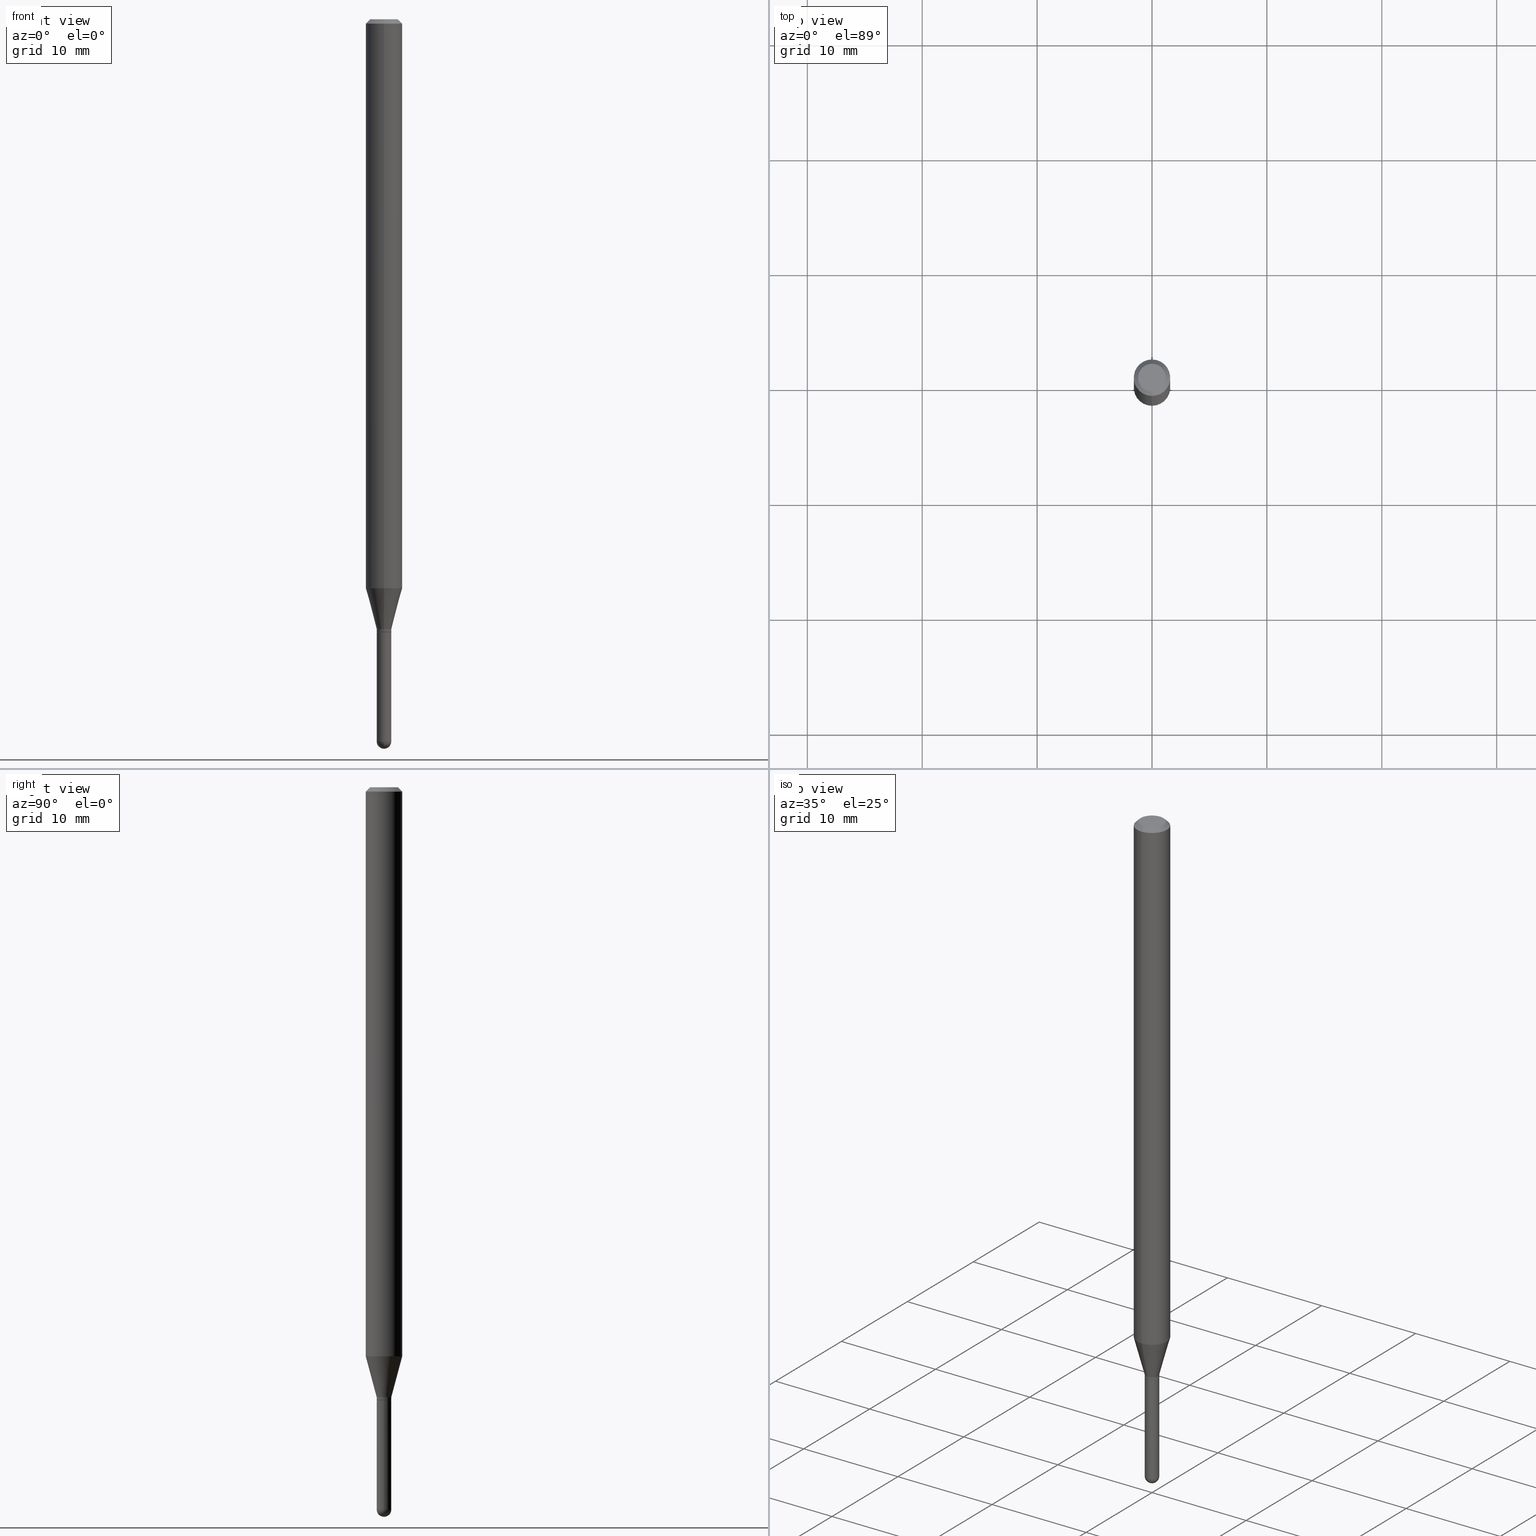
[diagram: canonical four-view strip — front | top / right | iso, engineering-drawing reading convention]
A machine part, canonical four-view strip (front | top / right | iso — engineering-drawing reading convention). The complete STEP part file that produces these views, byte-faithful:
ISO-10303-21;
HEADER;
FILE_DESCRIPTION (( 'STEP AP203' ),
    '1' );
FILE_NAME ('02757.STEP',
    '2024-03-07T21:16:15',
    ( '' ),
    ( '' ),
    'SwSTEP 2.0',
    'SolidWorks 2023',
    '' );
FILE_SCHEMA (( 'CONFIG_CONTROL_DESIGN' ));
ENDSEC;

DATA;
#1 = ORIENTED_EDGE ( 'NONE', *, *, #306, .F. ) ;
#2 = CC_DESIGN_PERSON_AND_ORGANIZATION_ASSIGNMENT ( #509, #86, ( #443 ) ) ;
#3 = CARTESIAN_POINT ( 'NONE',  ( 4.440892098501099478E-16, 0.06249999999999315131, -1.950048094716166691 ) ) ;
#4 = CARTESIAN_POINT ( 'NONE',  ( 5.135449444251921706E-29, -7.332161003356646763E-15, -2.100000000000000089 ) ) ;
#5 = DIRECTION ( 'NONE',  ( 2.445452116310438787E-29, -3.491505239693641409E-15, -1.000000000000000000 ) ) ;
#6 = APPLICATION_PROTOCOL_DEFINITION ( 'international standard', 'config_control_design', 1994, #57 ) ;
#7 = ORIENTED_EDGE ( 'NONE', *, *, #337, .F. ) ;
#8 = CONICAL_SURFACE ( 'NONE', #112, 0.02450000000000000441, 0.7853981633980202659 ) ;
#9 = CIRCLE ( 'NONE', #462, 0.02500000000000000139 ) ;
#10 = VECTOR ( 'NONE', #75, 39.37007874015748854 ) ;
#11 = CARTESIAN_POINT ( 'NONE',  ( 6.050397379585265558E-29, -8.644477930634654356E-15, -2.475000000000000089 ) ) ;
#12 = EDGE_CURVE ( 'NONE', #359, #162, #119, .T. ) ;
#13 = VECTOR ( 'NONE', #320, 39.37007874015748143 ) ;
#14 = CIRCLE ( 'NONE', #302, 0.02450000000000000441 ) ;
#15 = CARTESIAN_POINT ( 'NONE',  ( 5.110994923088818021E-29, -7.297245950959710763E-15, -2.090000000000000302 ) ) ;
#16 = DIRECTION ( 'NONE',  ( 1.000000000000000000, -6.982962677686254878E-15, 0.000000000000000000 ) ) ;
#17 = CARTESIAN_POINT ( 'NONE',  ( -4.287811248607203282E-16, -0.06250000000000005551, -0.01500000000000011047 ) ) ;
#18 = ORIENTED_EDGE ( 'NONE', *, *, #405, .T. ) ;
#19 = EDGE_CURVE ( 'NONE', #162, #298, #196, .T. ) ;
#20 = LINE ( 'NONE', #333, #235 ) ;
#21 = CIRCLE ( 'NONE', #84, 0.02499999999999966485 ) ;
#22 = DIRECTION ( 'NONE',  ( -6.982962677686265922E-15, -1.000000000000000000, 3.491505239693641409E-15 ) ) ;
#23 = DIRECTION ( 'NONE',  ( -2.445468806185136597E-29, 3.491481338843145583E-15, 1.000000000000000000 ) ) ;
#24 = DIRECTION ( 'NONE',  ( 1.000000000000000000, -6.982962677686267499E-15, 4.876176775795936353E-29 ) ) ;
#25 = VERTEX_POINT ( 'NONE', #430 ) ;
#26 = DIRECTION ( 'NONE',  ( 1.000000000000000000, -6.982962677686253300E-15, 0.000000000000000000 ) ) ;
#27 = EDGE_LOOP ( 'NONE', ( #1, #61, #124, #417 ) ) ;
#28 = CARTESIAN_POINT ( 'NONE',  ( 4.364351673553919652E-16, 0.06249999999999995143, -0.01500000000000054588 ) ) ;
#29 = ORIENTED_EDGE ( 'NONE', *, *, #74, .T. ) ;
#30 = AXIS2_PLACEMENT_3D ( 'NONE', #409, #94, #53 ) ;
#31 = VECTOR ( 'NONE', #460, 39.37007874015748143 ) ;
#32 = COORDINATED_UNIVERSAL_TIME_OFFSET ( 5, 0, .BEHIND. ) ;
#33 = PRODUCT ( '02757', '02757', '', ( #237 ) ) ;
#34 = FACE_OUTER_BOUND ( 'NONE', #461, .T. ) ;
#35 = PLANE ( 'NONE',  #399 ) ;
#36 = CARTESIAN_POINT ( 'NONE',  ( 3.668178174465738773E-31, -5.237257859540576252E-17, -0.01500000000000032904 ) ) ;
#37 = EDGE_CURVE ( 'NONE', #192, #248, #386, .T. ) ;
#38 = CARTESIAN_POINT ( 'NONE',  ( 5.135449444251921706E-29, -7.332161003356646763E-15, -2.099999999999999645 ) ) ;
#39 = EDGE_LOOP ( 'NONE', ( #474, #381, #374, #229 ) ) ;
#40 = ORIENTED_EDGE ( 'NONE', *, *, #490, .F. ) ;
#41 = CONICAL_SURFACE ( 'NONE', #285, 0.02499999999999965791, 0.2617993877991502960 ) ;
#42 = DIRECTION ( 'NONE',  ( 6.982962677686265922E-15, 1.000000000000000000, -3.491505239693641015E-15 ) ) ;
#43 = DIRECTION ( 'NONE',  ( -6.982962677686266711E-15, -1.000000000000000000, 3.491505239693641409E-15 ) ) ;
#44 = ORIENTED_EDGE ( 'NONE', *, *, #315, .F. ) ;
#45 = CARTESIAN_POINT ( 'NONE',  ( -1.776356839399633526E-16, -0.02500000000000847378, -2.475000000000000089 ) ) ;
#46 = LINE ( 'NONE', #485, #408 ) ;
#47 = PERSON_AND_ORGANIZATION ( #91, #128 ) ;
#48 = AXIS2_PLACEMENT_3D ( 'NONE', #338, #500, #297 ) ;
#49 = APPROVAL_PERSON_ORGANIZATION ( #428, #350, #145 ) ;
#50 = CONICAL_SURFACE ( 'NONE', #311, 0.06250000000000000000, 0.7853981633974483900 ) ;
#51 = CARTESIAN_POINT ( 'NONE',  ( 5.110994923088818021E-29, -7.297245950959710763E-15, -2.090000000000000302 ) ) ;
#52 = CARTESIAN_POINT ( 'NONE',  ( 5.135484492988787526E-29, -7.332110811570605290E-15, -2.100000000000000089 ) ) ;
#53 = DIRECTION ( 'NONE',  ( -6.982962677686266711E-15, -1.000000000000000000, 3.491505239693641409E-15 ) ) ;
#54 = ADVANCED_FACE ( 'NONE', ( #316 ), #35, .F. ) ;
#55 = AXIS2_PLACEMENT_3D ( 'NONE', #176, #92, #325 ) ;
#56 = ORIENTED_EDGE ( 'NONE', *, *, #215, .F. ) ;
#57 = APPLICATION_CONTEXT ( 'configuration controlled 3d designs of mechanical parts and assemblies' ) ;
#58 = CIRCLE ( 'NONE', #345, 0.02499999999999965791 ) ;
#59 = LINE ( 'NONE', #328, #168 ) ;
#60 = DIRECTION ( 'NONE',  ( -6.982962677686265922E-15, -1.000000000000000000, 0.000000000000000000 ) ) ;
#61 = ORIENTED_EDGE ( 'NONE', *, *, #155, .F. ) ;
#62 = ADVANCED_FACE ( 'NONE', ( #421 ), #50, .T. ) ;
#63 = DIRECTION ( 'NONE',  ( -1.807323732225330534E-15, -0.2588190451025182415, 0.9659258262890689783 ) ) ;
#64 = DIRECTION ( 'NONE',  ( -6.982962677686265922E-15, -1.000000000000000000, 0.000000000000000000 ) ) ;
#65 = EDGE_LOOP ( 'NONE', ( #410, #18, #370, #56 ) ) ;
#66 = CARTESIAN_POINT ( 'NONE',  ( 5.134226718193766409E-29, -7.330415250736800594E-15, -2.099499999999999922 ) ) ;
#67 = CARTESIAN_POINT ( 'NONE',  ( -0.02500000000000000486, 1.776356839400250810E-16, -1.229733772563726656E-30 ) ) ;
#68 = ORIENTED_EDGE ( 'NONE', *, *, #337, .T. ) ;
#69 = DATE_AND_TIME ( #403, #177 ) ;
#70 = AXIS2_PLACEMENT_3D ( 'NONE', #479, #136, #323 ) ;
#71 = DIRECTION ( 'NONE',  ( 1.000000000000000000, -6.982962677686265922E-15, 4.883557194083112340E-29 ) ) ;
#72 = CARTESIAN_POINT ( 'NONE',  ( 4.440892098500625669E-16, 0.06250000000000000000, -2.182190774808525881E-16 ) ) ;
#73 = ORIENTED_EDGE ( 'NONE', *, *, #426, .F. ) ;
#74 = EDGE_CURVE ( 'NONE', #359, #365, #446, .T. ) ;
#75 = DIRECTION ( 'NONE',  ( 5.024295867790934632E-15, 0.7071067811869542474, 0.7071067811861405650 ) ) ;
#76 = ORIENTED_EDGE ( 'NONE', *, *, #469, .F. ) ;
#77 = UNCERTAINTY_MEASURE_WITH_UNIT (LENGTH_MEASURE( 1.000000000000000082E-05 ), #276, 'distance_accuracy_value', 'NONE');
#78 = CIRCLE ( 'NONE', #212, 0.02499999999999965791 ) ;
#79 = AXIS2_PLACEMENT_3D ( 'NONE', #352, #71, #354 ) ;
#80 = EDGE_CURVE ( 'NONE', #279, #122, #9, .T. ) ;
#81 = ORIENTED_EDGE ( 'NONE', *, *, #398, .F. ) ;
#82 = DIRECTION ( 'NONE',  ( -2.445452116310438787E-29, 3.491505239693641409E-15, 1.000000000000000000 ) ) ;
#83 = CARTESIAN_POINT ( 'NONE',  ( -4.364351673553916201E-16, -0.06250000000000000000, 2.182190774808525881E-16 ) ) ;
#84 = AXIS2_PLACEMENT_3D ( 'NONE', #259, #340, #499 ) ;
#85 = EDGE_CURVE ( 'NONE', #219, #359, #46, .T. ) ;
#86 = PERSON_AND_ORGANIZATION_ROLE ( 'creator' ) ;
#87 = CARTESIAN_POINT ( 'NONE',  ( -1.745740669421031485E-16, -0.02500000000000695416, -2.090000000000000302 ) ) ;
#88 = DIRECTION ( 'NONE',  ( -2.445452116310438787E-29, 3.491505239693641409E-15, 1.000000000000000000 ) ) ;
#89 = SECURITY_CLASSIFICATION ( '', '', #243 ) ;
#90 = CIRCLE ( 'NONE', #135, 0.02500000000000000486 ) ;
#91 = PERSON ( 'UNSPECIFIED', 'UNSPECIFIED', 'UNSPECIFIED', ('UNSPECIFIED'), ('UNSPECIFIED'), ('UNSPECIFIED') ) ;
#92 = DIRECTION ( 'NONE',  ( 2.438088387897960049E-29, -3.491481338843145188E-15, -1.000000000000000000 ) ) ;
#93 = APPROVAL ( #120, 'UNSPECIFIED' ) ;
#94 = DIRECTION ( 'NONE',  ( -2.445452116310438787E-29, 3.491505239693641409E-15, 1.000000000000000000 ) ) ;
#95 = CARTESIAN_POINT ( 'NONE',  ( 8.024648714452041449E-45, -1.145722823454105752E-30, -3.281458124217611522E-16 ) ) ;
#96 = AXIS2_PLACEMENT_3D ( 'NONE', #327, #180, #295 ) ;
#97 = ORIENTED_EDGE ( 'NONE', *, *, #80, .F. ) ;
#98 = CIRCLE ( 'NONE', #291, 0.02500000000000020262 ) ;
#99 = CARTESIAN_POINT ( 'NONE',  ( 0.000000000000000000, 0.000000000000000000, 0.000000000000000000 ) ) ;
#100 = DIRECTION ( 'NONE',  ( -6.982962677686266711E-15, -1.000000000000000000, 0.000000000000000000 ) ) ;
#101 = DIRECTION ( 'NONE',  ( 1.839019923739600710E-15, 0.2588190451025250138, 0.9659258262890670910 ) ) ;
#102 = ORIENTED_EDGE ( 'NONE', *, *, #371, .F. ) ;
#103 = PERSON_AND_ORGANIZATION ( #91, #128 ) ;
#104 = DIRECTION ( 'NONE',  ( -2.445452116310438787E-29, 3.491505239693641409E-15, 1.000000000000000000 ) ) ;
#105 = CARTESIAN_POINT ( 'NONE',  ( 5.134226718193766409E-29, -7.330415250736800594E-15, -2.099499999999999922 ) ) ;
#106 = MANIFOLD_SOLID_BREP ( 'Body-Move/Copy2[2]', #211 ) ;
#107 = DIRECTION ( 'NONE',  ( -2.445468806185136597E-29, 3.491481338843145583E-15, 1.000000000000000000 ) ) ;
#108 = ORIENTED_EDGE ( 'NONE', *, *, #137, .T. ) ;
#109 = DIRECTION ( 'NONE',  ( -6.982962677686265922E-15, -1.000000000000000000, 3.483106191921935554E-15 ) ) ;
#110 = CARTESIAN_POINT ( 'NONE',  ( 3.840629472727447874E-16, 0.04749999999999999362, -4.939923113072091241E-16 ) ) ;
#111 = ORIENTED_EDGE ( 'NONE', *, *, #209, .F. ) ;
#112 = AXIS2_PLACEMENT_3D ( 'NONE', #292, #373, #60 ) ;
#113 = ADVANCED_FACE ( 'NONE', ( #453 ), #220, .T. ) ;
#114 = DIRECTION ( 'NONE',  ( 1.000000000000000000, -6.982962677686254878E-15, 0.000000000000000000 ) ) ;
#115 = ORIENTED_EDGE ( 'NONE', *, *, #358, .F. ) ;
#116 = DIRECTION ( 'NONE',  ( 1.000000000000000000, 0.000000000000000000, 0.000000000000000000 ) ) ;
#117 = AXIS2_PLACEMENT_3D ( 'NONE', #394, #82, #390 ) ;
#118 = DATE_TIME_ROLE ( 'classification_date' ) ;
#119 = LINE ( 'NONE', #83, #13 ) ;
#120 = APPROVAL_STATUS ( 'not_yet_approved' ) ;
#121 = ORIENTED_EDGE ( 'NONE', *, *, #37, .T. ) ;
#122 = VERTEX_POINT ( 'NONE', #223 ) ;
#123 = APPROVAL_ROLE ( '' ) ;
#124 = ORIENTED_EDGE ( 'NONE', *, *, #420, .T. ) ;
#125 = CC_DESIGN_APPROVAL ( #350, ( #454 ) ) ;
#126 = DIRECTION ( 'NONE',  ( -2.445452116310438787E-29, 3.491505239693641409E-15, 1.000000000000000000 ) ) ;
#127 = DIRECTION ( 'NONE',  ( 2.445452116310438787E-29, -3.491505239693641409E-15, -1.000000000000000000 ) ) ;
#128 = ORGANIZATION ( 'UNSPECIFIED', 'UNSPECIFIED', '' ) ;
#129 = DIRECTION ( 'NONE',  ( 1.000000000000000000, -6.982962677686267499E-15, 4.876176775795936353E-29 ) ) ;
#130 = ADVANCED_FACE ( 'NONE', ( #504 ), #330, .T. ) ;
#131 = DIRECTION ( 'NONE',  ( -6.982962677686265922E-15, -1.000000000000000000, 0.000000000000000000 ) ) ;
#132 = ORIENTED_EDGE ( 'NONE', *, *, #315, .T. ) ;
#133 = CC_DESIGN_DATE_AND_TIME_ASSIGNMENT ( #468, #271, ( #443 ) ) ;
#134 = DIRECTION ( 'NONE',  ( -2.445452116310438787E-29, 3.491505239693641409E-15, 1.000000000000000000 ) ) ;
#135 = AXIS2_PLACEMENT_3D ( 'NONE', #326, #444, #251 ) ;
#136 = DIRECTION ( 'NONE',  ( -2.445452116310438787E-29, 3.491505239693641409E-15, 1.000000000000000000 ) ) ;
#137 = EDGE_CURVE ( 'NONE', #192, #189, #21, .T. ) ;
#138 = ORIENTED_EDGE ( 'NONE', *, *, #355, .T. ) ;
#139 = COORDINATED_UNIVERSAL_TIME_OFFSET ( 5, 0, .BEHIND. ) ;
#140 = AXIS2_PLACEMENT_3D ( 'NONE', #153, #23, #467 ) ;
#141 = LOCAL_TIME ( 16, 16, 15.00000000000000000, #139 ) ;
#142 = DIRECTION ( 'NONE',  ( -2.445468806185136597E-29, 3.491481338843145583E-15, 1.000000000000000000 ) ) ;
#143 = ADVANCED_BREP_SHAPE_REPRESENTATION ( '02757', ( #450, #106, #346 ), #506 ) ;
#144 = VERTEX_POINT ( 'NONE', #343 ) ;
#145 = APPROVAL_ROLE ( '' ) ;
#146 = DIRECTION ( 'NONE',  ( -4.851104656540964275E-15, -0.7071067811865500152, -0.7071067811865450192 ) ) ;
#147 = ORIENTED_EDGE ( 'NONE', *, *, #273, .F. ) ;
#148 = PERSON_AND_ORGANIZATION ( #91, #128 ) ;
#149 = LINE ( 'NONE', #72, #31 ) ;
#150 = ORIENTED_EDGE ( 'NONE', *, *, #405, .F. ) ;
#151 = ADVANCED_FACE ( 'NONE', ( #466 ), #41, .T. ) ;
#152 = ORIENTED_EDGE ( 'NONE', *, *, #309, .T. ) ;
#153 = CARTESIAN_POINT ( 'NONE',  ( 6.052535295308213750E-29, -8.641416313636786609E-15, -2.475000000000000089 ) ) ;
#154 = ORIENTED_EDGE ( 'NONE', *, *, #270, .T. ) ;
#155 = EDGE_CURVE ( 'NONE', #356, #347, #353, .T. ) ;
#156 = DIRECTION ( 'NONE',  ( -2.445452116310438787E-29, 3.491505239693641409E-15, 1.000000000000000000 ) ) ;
#157 = ORIENTED_EDGE ( 'NONE', *, *, #74, .F. ) ;
#158 = DIRECTION ( 'NONE',  ( 6.982962677686265922E-15, 1.000000000000000000, 0.000000000000000000 ) ) ;
#159 = AXIS2_PLACEMENT_3D ( 'NONE', #204, #126, #109 ) ;
#160 = FACE_OUTER_BOUND ( 'NONE', #27, .T. ) ;
#161 = LINE ( 'NONE', #314, #10 ) ;
#162 = VERTEX_POINT ( 'NONE', #448 ) ;
#163 = PERSON_AND_ORGANIZATION ( #91, #128 ) ;
#164 = DIRECTION ( 'NONE',  ( -6.982962677686265922E-15, -1.000000000000000000, 3.491505239693641015E-15 ) ) ;
#165 = DIRECTION ( 'NONE',  ( 6.982962677686265922E-15, 1.000000000000000000, -3.483106191921935554E-15 ) ) ;
#166 =( NAMED_UNIT ( * ) PLANE_ANGLE_UNIT ( ) SI_UNIT ( $, .RADIAN. ) );
#167 = CYLINDRICAL_SURFACE ( 'NONE', #488, 0.02500000000000000486 ) ;
#168 = VECTOR ( 'NONE', #455, 39.37007874015748143 ) ;
#169 = APPROVAL_PERSON_ORGANIZATION ( #378, #459, #269 ) ;
#170 = CC_DESIGN_APPROVAL ( #93, ( #443 ) ) ;
#171 = ORIENTED_EDGE ( 'NONE', *, *, #309, .F. ) ;
#172 = CARTESIAN_POINT ( 'NONE',  ( 5.110994923088818021E-29, -7.297245950959710763E-15, -2.090000000000000302 ) ) ;
#173 = PERSON_AND_ORGANIZATION_ROLE ( 'classification_officer' ) ;
#174 = ADVANCED_FACE ( 'NONE', ( #286 ), #447, .T. ) ;
#175 = DIRECTION ( 'NONE',  ( -6.982962677686265922E-15, -1.000000000000000000, 3.483106191921935554E-15 ) ) ;
#176 = CARTESIAN_POINT ( 'NONE',  ( 1.745740669422079930E-16, 0.02499999999999267045, -2.100000000000000089 ) ) ;
#177 = LOCAL_TIME ( 16, 16, 15.00000000000000000, #483 ) ;
#178 = AXIS2_PLACEMENT_3D ( 'NONE', #476, #200, #491 ) ;
#179 = CIRCLE ( 'NONE', #48, 0.02500000000000000486 ) ;
#180 = DIRECTION ( 'NONE',  ( -2.445452116310438787E-29, 3.491505239693641409E-15, 1.000000000000000000 ) ) ;
#181 = LINE ( 'NONE', #67, #217 ) ;
#182 = ORIENTED_EDGE ( 'NONE', *, *, #209, .T. ) ;
#183 = EDGE_CURVE ( 'NONE', #248, #425, #90, .T. ) ;
#184 = AXIS2_PLACEMENT_3D ( 'NONE', #232, #299, #22 ) ;
#185 = FACE_OUTER_BOUND ( 'NONE', #502, .T. ) ;
#186 = FACE_OUTER_BOUND ( 'NONE', #498, .T. ) ;
#187 = CC_DESIGN_PERSON_AND_ORGANIZATION_ASSIGNMENT ( #163, #348, ( #33 ) ) ;
#188 = CARTESIAN_POINT ( 'NONE',  ( -3.773273898774340269E-16, -0.04749999999999999362, -1.622993135363132050E-16 ) ) ;
#189 = VERTEX_POINT ( 'NONE', #45 ) ;
#190 = CARTESIAN_POINT ( 'NONE',  ( -1.745740669421561747E-16, -0.02499999999999992853, 8.728763099234078872E-17 ) ) ;
#191 = CARTESIAN_POINT ( 'NONE',  ( 5.135484492988787526E-29, -7.332110811570605290E-15, -2.100000000000000089 ) ) ;
#192 = VERTEX_POINT ( 'NONE', #482 ) ;
#193 = LINE ( 'NONE', #190, #233 ) ;
#194 = CIRCLE ( 'NONE', #318, 0.02500000000000000139 ) ;
#195 = ORIENTED_EDGE ( 'NONE', *, *, #371, .T. ) ;
#196 = CIRCLE ( 'NONE', #159, 0.06250000000000000000 ) ;
#197 = ADVANCED_FACE ( 'NONE', ( #361 ), #167, .T. ) ;
#198 = DIRECTION ( 'NONE',  ( 0.000000000000000000, 0.000000000000000000, 1.000000000000000000 ) ) ;
#199 =( LENGTH_UNIT ( ) NAMED_UNIT ( * ) SI_UNIT ( $, .METRE. ) );
#200 = DIRECTION ( 'NONE',  ( -2.445452116310438787E-29, 3.491505239693641409E-15, 1.000000000000000000 ) ) ;
#201 = LENGTH_MEASURE_WITH_UNIT ( LENGTH_MEASURE( 0.02539999999999999897 ), #199 );
#202 = PLANE ( 'NONE',  #463 ) ;
#203 = AXIS2_PLACEMENT_3D ( 'NONE', #282, #442, #175 ) ;
#204 = CARTESIAN_POINT ( 'NONE',  ( 3.668178174465738773E-31, -5.237257859540576252E-17, -0.01500000000000032904 ) ) ;
#205 = CARTESIAN_POINT ( 'NONE',  ( 6.050397379585265558E-29, -8.644477930634654356E-15, -2.475000000000000089 ) ) ;
#206 = EDGE_CURVE ( 'NONE', #298, #162, #216, .T. ) ;
#207 = EDGE_LOOP ( 'NONE', ( #154, #415, #157, #255 ) ) ;
#208 = APPLICATION_CONTEXT ( 'configuration controlled 3d designs of mechanical parts and assemblies' ) ;
#209 = EDGE_CURVE ( 'NONE', #347, #356, #505, .T. ) ;
#210 = DIRECTION ( 'NONE',  ( -2.445468806185136597E-29, 3.491481338843145583E-15, 1.000000000000000000 ) ) ;
#211 = CLOSED_SHELL ( 'NONE', ( #481, #245, #62, #113, #230, #151, #130, #489, #54, #363, #266, #234 ) ) ;
#212 = AXIS2_PLACEMENT_3D ( 'NONE', #15, #228, #368 ) ;
#213 = FACE_OUTER_BOUND ( 'NONE', #65, .T. ) ;
#214 = DIRECTION ( 'NONE',  ( -1.000000000000000000, 6.982962677686265922E-15, -4.883557194083112901E-29 ) ) ;
#215 = EDGE_CURVE ( 'NONE', #25, #219, #58, .T. ) ;
#216 = CIRCLE ( 'NONE', #203, 0.06250000000000000000 ) ;
#217 = VECTOR ( 'NONE', #380, 39.37007874015748143 ) ;
#218 = FACE_OUTER_BOUND ( 'NONE', #288, .T. ) ;
#219 = VERTEX_POINT ( 'NONE', #87 ) ;
#220 = CYLINDRICAL_SURFACE ( 'NONE', #184, 0.06250000000000000000 ) ;
#221 = ADVANCED_FACE ( 'NONE', ( #246 ), #445, .F. ) ;
#222 = DIRECTION ( 'NONE',  ( -2.445452116310438787E-29, 3.491505239693641409E-15, 1.000000000000000000 ) ) ;
#223 = CARTESIAN_POINT ( 'NONE',  ( -0.02500000000000000139, -7.809127878663670745E-15, -2.100000000000000089 ) ) ;
#224 = CARTESIAN_POINT ( 'NONE',  ( -0.02500000000000000486, -7.809127878663670745E-15, -2.475000000000000089 ) ) ;
#225 = CARTESIAN_POINT ( 'NONE',  ( 0.02500000000000000486, -1.745740669421567171E-16, 1.219044193948984299E-30 ) ) ;
#226 = ORIENTED_EDGE ( 'NONE', *, *, #426, .T. ) ;
#227 = EDGE_LOOP ( 'NONE', ( #111, #275, #433, #438 ) ) ;
#228 = DIRECTION ( 'NONE',  ( -2.445452116310438787E-29, 3.491505239693641409E-15, 1.000000000000000000 ) ) ;
#229 = ORIENTED_EDGE ( 'NONE', *, *, #206, .F. ) ;
#230 = ADVANCED_FACE ( 'NONE', ( #404 ), #344, .T. ) ;
#231 = CARTESIAN_POINT ( 'NONE',  ( -1.745740669421073393E-16, -0.02500000000000762029, -2.099499999999999922 ) ) ;
#232 = CARTESIAN_POINT ( 'NONE',  ( 0.000000000000000000, 0.000000000000000000, 0.000000000000000000 ) ) ;
#233 = VECTOR ( 'NONE', #507, 39.37007874015748143 ) ;
#234 = ADVANCED_FACE ( 'NONE', ( #213 ), #249, .T. ) ;
#235 = VECTOR ( 'NONE', #101, 39.37007874015748143 ) ;
#236 = CALENDAR_DATE ( 2024, 7, 3 ) ;
#237 = MECHANICAL_CONTEXT ( 'NONE', #57, 'mechanical' ) ;
#238 = VERTEX_POINT ( 'NONE', #487 ) ;
#239 = CARTESIAN_POINT ( 'NONE',  ( 3.668178174465738773E-31, -5.237257859540576252E-17, -0.01500000000000032904 ) ) ;
#240 = AXIS2_PLACEMENT_3D ( 'NONE', #308, #242, #431 ) ;
#241 = CARTESIAN_POINT ( 'NONE',  ( 3.316907271900976096E-16, 0.04749999999999999362, -3.299194050963284987E-16 ) ) ;
#242 = DIRECTION ( 'NONE',  ( -2.445452116310438787E-29, 3.491505239693641409E-15, 1.000000000000000000 ) ) ;
#243 = SECURITY_CLASSIFICATION_LEVEL ( 'unclassified' ) ;
#244 = EDGE_LOOP ( 'NONE', ( #226, #440, #334, #501 ) ) ;
#245 = ADVANCED_FACE ( 'NONE', ( #218 ), #411, .T. ) ;
#246 = FACE_OUTER_BOUND ( 'NONE', #419, .T. ) ;
#247 = DIRECTION ( 'NONE',  ( 6.982962677686265922E-15, 1.000000000000000000, 0.000000000000000000 ) ) ;
#248 = VERTEX_POINT ( 'NONE', #254 ) ;
#249 = CYLINDRICAL_SURFACE ( 'NONE', #30, 0.02499999999999992853 ) ;
#250 = EDGE_CURVE ( 'NONE', #122, #279, #194, .T. ) ;
#251 = DIRECTION ( 'NONE',  ( 1.000000000000000000, -6.982962677686253300E-15, 0.000000000000000000 ) ) ;
#252 = CIRCLE ( 'NONE', #96, 0.02450000000000000441 ) ;
#253 = LOCAL_TIME ( 16, 16, 15.00000000000000000, #32 ) ;
#254 = CARTESIAN_POINT ( 'NONE',  ( 1.745740669422160049E-16, 0.02499999999999119593, -2.475000000000000089 ) ) ;
#255 = ORIENTED_EDGE ( 'NONE', *, *, #85, .F. ) ;
#256 = CYLINDRICAL_SURFACE ( 'NONE', #272, 0.02500000000000000486 ) ;
#257 = ORIENTED_EDGE ( 'NONE', *, *, #37, .F. ) ;
#258 = CC_DESIGN_DATE_AND_TIME_ASSIGNMENT ( #69, #118, ( #89 ) ) ;
#259 = CARTESIAN_POINT ( 'NONE',  ( 6.050397379585265558E-29, -8.644477930634654356E-15, -2.475000000000000089 ) ) ;
#260 = LINE ( 'NONE', #28, #319 ) ;
#261 = LINE ( 'NONE', #17, #429 ) ;
#262 = EDGE_LOOP ( 'NONE', ( #465, #182 ) ) ;
#263 = CARTESIAN_POINT ( 'NONE',  ( 6.052535295308213750E-29, -8.641416313636786609E-15, -2.475000000000000089 ) ) ;
#264 = ORIENTED_EDGE ( 'NONE', *, *, #508, .F. ) ;
#265 = COORDINATED_UNIVERSAL_TIME_OFFSET ( 5, 0, .BEHIND. ) ;
#266 = ADVANCED_FACE ( 'NONE', ( #185 ), #8, .T. ) ;
#267 = DIRECTION ( 'NONE',  ( 4.937700262164548042E-15, 0.7071067811865451302, -0.7071067811865499042 ) ) ;
#268 = VERTEX_POINT ( 'NONE', #414 ) ;
#269 = APPROVAL_ROLE ( '' ) ;
#270 = EDGE_CURVE ( 'NONE', #219, #25, #78, .T. ) ;
#271 = DATE_TIME_ROLE ( 'creation_date' ) ;
#272 = AXIS2_PLACEMENT_3D ( 'NONE', #416, #107, #24 ) ;
#273 = EDGE_CURVE ( 'NONE', #25, #365, #20, .T. ) ;
#274 = CYLINDRICAL_SURFACE ( 'NONE', #117, 0.02499999999999992853 ) ;
#275 = ORIENTED_EDGE ( 'NONE', *, *, #306, .T. ) ;
#276 =( CONVERSION_BASED_UNIT ( 'INCH', #201 ) LENGTH_UNIT ( ) NAMED_UNIT ( #329 ) );
#277 = PRODUCT_DEFINITION_SHAPE ( 'NONE', 'NONE',  #443 ) ;
#278 = DATE_AND_TIME ( #236, #478 ) ;
#279 = VERTEX_POINT ( 'NONE', #369 ) ;
#280 = AXIS2_PLACEMENT_3D ( 'NONE', #95, #134, #43 ) ;
#281 = ORIENTED_EDGE ( 'NONE', *, *, #215, .T. ) ;
#282 = CARTESIAN_POINT ( 'NONE',  ( 3.668178174465738773E-31, -5.237257859540576252E-17, -0.01500000000000032904 ) ) ;
#283 = DIRECTION ( 'NONE',  ( -6.982962677686265922E-15, -1.000000000000000000, 0.000000000000000000 ) ) ;
#284 = ORIENTED_EDGE ( 'NONE', *, *, #250, .T. ) ;
#285 = AXIS2_PLACEMENT_3D ( 'NONE', #375, #336, #283 ) ;
#286 = FACE_OUTER_BOUND ( 'NONE', #456, .T. ) ;
#287 = CC_DESIGN_PERSON_AND_ORGANIZATION_ASSIGNMENT ( #47, #173, ( #89 ) ) ;
#288 = EDGE_LOOP ( 'NONE', ( #152, #195, #73, #81 ) ) ;
#289 = VECTOR ( 'NONE', #376, 39.37007874015748143 ) ;
#290 = DIRECTION ( 'NONE',  ( -6.982962677686266711E-15, -1.000000000000000000, 0.000000000000000000 ) ) ;
#291 = AXIS2_PLACEMENT_3D ( 'NONE', #105, #464, #290 ) ;
#292 = CARTESIAN_POINT ( 'NONE',  ( 5.135449444251921706E-29, -7.332161003356646763E-15, -2.099999999999999645 ) ) ;
#293 = ORIENTED_EDGE ( 'NONE', *, *, #355, .F. ) ;
#294 = DATE_AND_TIME ( #335, #141 ) ;
#295 = DIRECTION ( 'NONE',  ( -6.982962677686265922E-15, -1.000000000000000000, 0.000000000000000000 ) ) ;
#296 = PERSON_AND_ORGANIZATION_ROLE ( 'design_supplier' ) ;
#297 = DIRECTION ( 'NONE',  ( 1.000000000000000000, -6.982962677686253300E-15, 0.000000000000000000 ) ) ;
#298 = VERTEX_POINT ( 'NONE', #497 ) ;
#299 = DIRECTION ( 'NONE',  ( -2.445452116310438787E-29, 3.491505239693641409E-15, 1.000000000000000000 ) ) ;
#300 = EDGE_CURVE ( 'NONE', #365, #298, #149, .T. ) ;
#301 = CARTESIAN_POINT ( 'NONE',  ( -1.710825856032621875E-16, -0.02450000000000733882, -2.099999999999999645 ) ) ;
#302 = AXIS2_PLACEMENT_3D ( 'NONE', #38, #156, #511 ) ;
#303 = APPROVAL_DATE_TIME ( #339, #459 ) ;
#304 = CC_DESIGN_PERSON_AND_ORGANIZATION_ASSIGNMENT ( #103, #296, ( #454 ) ) ;
#305 = CALENDAR_DATE ( 2024, 7, 3 ) ;
#306 = EDGE_CURVE ( 'NONE', #347, #162, #261, .T. ) ;
#307 = ORIENTED_EDGE ( 'NONE', *, *, #85, .T. ) ;
#308 = CARTESIAN_POINT ( 'NONE',  ( 4.768749240130788983E-29, -6.808603140356097792E-15, -1.950048094716166469 ) ) ;
#309 = EDGE_CURVE ( 'NONE', #268, #238, #252, .T. ) ;
#310 = ORIENTED_EDGE ( 'NONE', *, *, #398, .T. ) ;
#311 = AXIS2_PLACEMENT_3D ( 'NONE', #36, #5, #165 ) ;
#312 = ORIENTED_EDGE ( 'NONE', *, *, #80, .T. ) ;
#313 = FACE_OUTER_BOUND ( 'NONE', #244, .T. ) ;
#314 = CARTESIAN_POINT ( 'NONE',  ( 1.740829702612759022E-16, 0.02449999999999267000, -2.099999999999999645 ) ) ;
#315 = EDGE_CURVE ( 'NONE', #425, #122, #181, .T. ) ;
#316 = FACE_OUTER_BOUND ( 'NONE', #262, .T. ) ;
#317 = PERSON_AND_ORGANIZATION ( #91, #128 ) ;
#318 = AXIS2_PLACEMENT_3D ( 'NONE', #191, #142, #114 ) ;
#319 = VECTOR ( 'NONE', #267, 39.37007874015748143 ) ;
#320 = DIRECTION ( 'NONE',  ( -2.445452116310438787E-29, 3.491505239693641015E-15, 1.000000000000000000 ) ) ;
#321 = EDGE_CURVE ( 'NONE', #382, #25, #59, .T. ) ;
#322 = DIRECTION ( 'NONE',  ( -2.445452116310438787E-29, 3.491505239693641409E-15, 1.000000000000000000 ) ) ;
#323 = DIRECTION ( 'NONE',  ( -6.982962677686266711E-15, -1.000000000000000000, 3.491505239693641409E-15 ) ) ;
#324 = ADVANCED_FACE ( 'NONE', ( #457 ), #256, .T. ) ;
#325 = DIRECTION ( 'NONE',  ( -1.000000000000000000, 6.982962677686265922E-15, -4.876176775795935793E-29 ) ) ;
#326 = CARTESIAN_POINT ( 'NONE',  ( 6.052535295308213750E-29, -8.641416313636786609E-15, -2.475000000000000089 ) ) ;
#327 = CARTESIAN_POINT ( 'NONE',  ( 5.135449444251921706E-29, -7.332161003356646763E-15, -2.099999999999999645 ) ) ;
#328 = CARTESIAN_POINT ( 'NONE',  ( 1.776356839400245140E-16, 0.02499999999999992853, -8.728763099234078872E-17 ) ) ;
#329 = DIMENSIONAL_EXPONENTS ( 1.000000000000000000, 0.000000000000000000, 0.000000000000000000, 0.000000000000000000, 0.000000000000000000, 0.000000000000000000, 0.000000000000000000 ) ;
#330 = CYLINDRICAL_SURFACE ( 'NONE', #332, 0.06250000000000000000 ) ;
#331 = CONICAL_SURFACE ( 'NONE', #407, 0.06250000000000000000, 0.7853981633974483900 ) ;
#332 = AXIS2_PLACEMENT_3D ( 'NONE', #99, #104, #379 ) ;
#333 = CARTESIAN_POINT ( 'NONE',  ( 1.776356839400736699E-16, 0.02499999999999235820, -2.090000000000000302 ) ) ;
#334 = ORIENTED_EDGE ( 'NONE', *, *, #270, .F. ) ;
#335 = CALENDAR_DATE ( 2024, 7, 3 ) ;
#336 = DIRECTION ( 'NONE',  ( -2.445452116310438787E-29, 3.491505239693641409E-15, 1.000000000000000000 ) ) ;
#337 = EDGE_CURVE ( 'NONE', #144, #279, #418, .T. ) ;
#338 = CARTESIAN_POINT ( 'NONE',  ( 6.052535295308213750E-29, -8.641416313636786609E-15, -2.475000000000000089 ) ) ;
#339 = DATE_AND_TIME ( #389, #436 ) ;
#340 = DIRECTION ( 'NONE',  ( -1.000000000000000000, 7.105427357601001070E-15, -4.926315508542082329E-29 ) ) ;
#341 = EDGE_LOOP ( 'NONE', ( #44, #138, #510, #68, #349 ) ) ;
#342 = CC_DESIGN_PERSON_AND_ORGANIZATION_ASSIGNMENT ( #148, #406, ( #454 ) ) ;
#343 = CARTESIAN_POINT ( 'NONE',  ( 0.02500000000000000486, -8.161337629545851828E-15, -2.475000000000000089 ) ) ;
#344 = CONICAL_SURFACE ( 'NONE', #493, 0.02499999999999965791, 0.2617993877991502960 ) ;
#345 = AXIS2_PLACEMENT_3D ( 'NONE', #172, #88, #484 ) ;
#346 = AXIS2_PLACEMENT_3D ( 'NONE', #385, #198, #116 ) ;
#347 = VERTEX_POINT ( 'NONE', #188 ) ;
#348 = PERSON_AND_ORGANIZATION_ROLE ( 'design_owner' ) ;
#349 = ORIENTED_EDGE ( 'NONE', *, *, #250, .F. ) ;
#350 = APPROVAL ( #351, 'UNSPECIFIED' ) ;
#351 = APPROVAL_STATUS ( 'not_yet_approved' ) ;
#352 = CARTESIAN_POINT ( 'NONE',  ( 6.050397379585265558E-29, -8.644477930634654356E-15, -2.475000000000000089 ) ) ;
#353 = CIRCLE ( 'NONE', #70, 0.04749999999999999362 ) ;
#354 = DIRECTION ( 'NONE',  ( 6.982962677686266711E-15, 1.000000000000000000, 0.000000000000000000 ) ) ;
#355 = EDGE_CURVE ( 'NONE', #425, #189, #179, .T. ) ;
#356 = VERTEX_POINT ( 'NONE', #110 ) ;
#357 = DIRECTION ( 'NONE',  ( -2.445468806185136597E-29, 3.491481338843145583E-15, 1.000000000000000000 ) ) ;
#358 = EDGE_CURVE ( 'NONE', #144, #248, #367, .T. ) ;
#359 = VERTEX_POINT ( 'NONE', #388 ) ;
#360 = CIRCLE ( 'NONE', #140, 0.02500000000000000486 ) ;
#361 = FACE_OUTER_BOUND ( 'NONE', #341, .T. ) ;
#362 = CIRCLE ( 'NONE', #387, 0.02500000000000020262 ) ;
#363 = ADVANCED_FACE ( 'NONE', ( #34 ), #202, .F. ) ;
#364 = PRODUCT_RELATED_PRODUCT_CATEGORY ( 'detail', '', ( #33 ) ) ;
#365 = VERTEX_POINT ( 'NONE', #3 ) ;
#366 = CARTESIAN_POINT ( 'NONE',  ( 0.000000000000000000, 0.000000000000000000, 0.000000000000000000 ) ) ;
#367 = CIRCLE ( 'NONE', #449, 0.02500000000000000486 ) ;
#368 = DIRECTION ( 'NONE',  ( -6.982962677686265922E-15, -1.000000000000000000, 0.000000000000000000 ) ) ;
#369 = CARTESIAN_POINT ( 'NONE',  ( 0.02500000000000000139, -7.506684878512761957E-15, -2.100000000000000089 ) ) ;
#370 = ORIENTED_EDGE ( 'NONE', *, *, #434, .T. ) ;
#371 = EDGE_CURVE ( 'NONE', #238, #382, #161, .T. ) ;
#372 = DIRECTION ( 'NONE',  ( -2.445452116310438787E-29, 3.491505239693641409E-15, 1.000000000000000000 ) ) ;
#373 = DIRECTION ( 'NONE',  ( -2.445452116310438787E-29, 3.491505239693641409E-15, 1.000000000000000000 ) ) ;
#374 = ORIENTED_EDGE ( 'NONE', *, *, #12, .T. ) ;
#375 = CARTESIAN_POINT ( 'NONE',  ( 5.110994923088818021E-29, -7.297245950959710763E-15, -2.090000000000000302 ) ) ;
#376 = DIRECTION ( 'NONE',  ( -2.445468806185136877E-29, 3.491481338843145188E-15, 1.000000000000000000 ) ) ;
#377 = ORIENTED_EDGE ( 'NONE', *, *, #137, .F. ) ;
#378 = PERSON_AND_ORGANIZATION ( #91, #128 ) ;
#379 = DIRECTION ( 'NONE',  ( -6.982962677686265922E-15, -1.000000000000000000, 3.491505239693641409E-15 ) ) ;
#380 = DIRECTION ( 'NONE',  ( -2.445468806185136877E-29, 3.491481338843145188E-15, 1.000000000000000000 ) ) ;
#381 = ORIENTED_EDGE ( 'NONE', *, *, #490, .T. ) ;
#382 = VERTEX_POINT ( 'NONE', #475 ) ;
#383 = AXIS2_PLACEMENT_3D ( 'NONE', #492, #222, #64 ) ;
#384 = DESIGN_CONTEXT ( 'detailed design', #208, 'design' ) ;
#385 = CARTESIAN_POINT ( 'NONE',  ( 0.000000000000000000, 0.000000000000000000, 0.000000000000000000 ) ) ;
#386 = CIRCLE ( 'NONE', #79, 0.02499999999999966485 ) ;
#387 = AXIS2_PLACEMENT_3D ( 'NONE', #66, #372, #100 ) ;
#388 = CARTESIAN_POINT ( 'NONE',  ( -4.364351673553440419E-16, -0.06250000000000682787, -1.950048094716166247 ) ) ;
#389 = CALENDAR_DATE ( 2024, 7, 3 ) ;
#390 = DIRECTION ( 'NONE',  ( -6.982962677686266711E-15, -1.000000000000000000, 3.491505239693641409E-15 ) ) ;
#391 = DIRECTION ( 'NONE',  ( -2.445452116310438787E-29, 3.491505239693641015E-15, 1.000000000000000000 ) ) ;
#392 = SHAPE_DEFINITION_REPRESENTATION ( #277, #143 ) ;
#393 = DIRECTION ( 'NONE',  ( 2.445452116310438787E-29, -3.491505239693641015E-15, -1.000000000000000000 ) ) ;
#394 = CARTESIAN_POINT ( 'NONE',  ( 0.000000000000000000, 0.000000000000000000, 0.000000000000000000 ) ) ;
#395 = ORIENTED_EDGE ( 'NONE', *, *, #508, .T. ) ;
#396 = VERTEX_POINT ( 'NONE', #231 ) ;
#397 = DIRECTION ( 'NONE',  ( 6.982962677686265922E-15, 1.000000000000000000, -3.483106191921935554E-15 ) ) ;
#398 = EDGE_CURVE ( 'NONE', #268, #396, #441, .T. ) ;
#399 = AXIS2_PLACEMENT_3D ( 'NONE', #241, #393, #42 ) ;
#400 = CIRCLE ( 'NONE', #240, 0.06250000000000000000 ) ;
#401 = ORIENTED_EDGE ( 'NONE', *, *, #358, .T. ) ;
#402 = DIRECTION ( 'NONE',  ( -1.000000000000000000, 6.982962677686265922E-15, -4.883557194083112901E-29 ) ) ;
#403 = CALENDAR_DATE ( 2024, 7, 3 ) ;
#404 = FACE_OUTER_BOUND ( 'NONE', #207, .T. ) ;
#405 = EDGE_CURVE ( 'NONE', #382, #396, #98, .T. ) ;
#406 = PERSON_AND_ORGANIZATION_ROLE ( 'creator' ) ;
#407 = AXIS2_PLACEMENT_3D ( 'NONE', #239, #127, #397 ) ;
#408 = VECTOR ( 'NONE', #63, 39.37007874015748143 ) ;
#409 = CARTESIAN_POINT ( 'NONE',  ( 0.000000000000000000, 0.000000000000000000, 0.000000000000000000 ) ) ;
#410 = ORIENTED_EDGE ( 'NONE', *, *, #321, .F. ) ;
#411 = CONICAL_SURFACE ( 'NONE', #383, 0.02450000000000000441, 0.7853981633980202659 ) ;
#412 = CLOSED_SHELL ( 'NONE', ( #324, #473, #221, #174, #197 ) ) ;
#413 = APPROVAL_PERSON_ORGANIZATION ( #317, #93, #123 ) ;
#414 = CARTESIAN_POINT ( 'NONE',  ( -1.710825856032621875E-16, -0.02450000000000733882, -2.099999999999999645 ) ) ;
#415 = ORIENTED_EDGE ( 'NONE', *, *, #273, .T. ) ;
#416 = CARTESIAN_POINT ( 'NONE',  ( 0.000000000000000000, 0.000000000000000000, 0.000000000000000000 ) ) ;
#417 = ORIENTED_EDGE ( 'NONE', *, *, #206, .T. ) ;
#418 = LINE ( 'NONE', #225, #289 ) ;
#419 = EDGE_LOOP ( 'NONE', ( #312, #284 ) ) ;
#420 = EDGE_CURVE ( 'NONE', #356, #298, #260, .T. ) ;
#421 = FACE_OUTER_BOUND ( 'NONE', #227, .T. ) ;
#422 = DIRECTION ( 'NONE',  ( -2.445468806185136597E-29, 3.491481338843145583E-15, 1.000000000000000000 ) ) ;
#423 = ORIENTED_EDGE ( 'NONE', *, *, #19, .F. ) ;
#424 = DIRECTION ( 'NONE',  ( -4.937700262167370586E-15, -0.7071067811869493624, 0.7071067811861454500 ) ) ;
#425 = VERTEX_POINT ( 'NONE', #224 ) ;
#426 = EDGE_CURVE ( 'NONE', #396, #382, #362, .T. ) ;
#427 = AXIS2_PLACEMENT_3D ( 'NONE', #205, #402, #158 ) ;
#428 = PERSON_AND_ORGANIZATION ( #91, #128 ) ;
#429 = VECTOR ( 'NONE', #146, 39.37007874015748143 ) ;
#430 = CARTESIAN_POINT ( 'NONE',  ( 3.108624468950920307E-16, 0.02499999999999236167, -2.090000000000000302 ) ) ;
#431 = DIRECTION ( 'NONE',  ( -6.982962677686265922E-15, -1.000000000000000000, 4.370956789862821150E-15 ) ) ;
#432 = APPLICATION_PROTOCOL_DEFINITION ( 'international standard', 'config_control_design', 1994, #208 ) ;
#433 = ORIENTED_EDGE ( 'NONE', *, *, #19, .T. ) ;
#434 = EDGE_CURVE ( 'NONE', #396, #219, #193, .T. ) ;
#435 =( NAMED_UNIT ( * ) SI_UNIT ( $, .STERADIAN. ) SOLID_ANGLE_UNIT ( ) );
#436 = LOCAL_TIME ( 16, 16, 15.00000000000000000, #265 ) ;
#437 = AXIS2_PLACEMENT_3D ( 'NONE', #11, #214, #247 ) ;
#438 = ORIENTED_EDGE ( 'NONE', *, *, #420, .F. ) ;
#439 = APPROVAL_DATE_TIME ( #278, #93 ) ;
#440 = ORIENTED_EDGE ( 'NONE', *, *, #321, .T. ) ;
#441 = LINE ( 'NONE', #301, #496 ) ;
#442 = DIRECTION ( 'NONE',  ( -2.445452116310438787E-29, 3.491505239693641409E-15, 1.000000000000000000 ) ) ;
#443 = PRODUCT_DEFINITION ( 'UNKNOWN', '', #454, #384 ) ;
#444 = DIRECTION ( 'NONE',  ( -2.445468806185136597E-29, 3.491481338843145583E-15, 1.000000000000000000 ) ) ;
#445 = PLANE ( 'NONE',  #55 ) ;
#446 = CIRCLE ( 'NONE', #178, 0.06250000000000000000 ) ;
#447 = SPHERICAL_SURFACE ( 'NONE', #437, 0.02499999999999966485 ) ;
#448 = CARTESIAN_POINT ( 'NONE',  ( -4.364351673553912750E-16, -0.06250000000000005551, -0.01500000000000011047 ) ) ;
#449 = AXIS2_PLACEMENT_3D ( 'NONE', #263, #422, #26 ) ;
#450 = MANIFOLD_SOLID_BREP ( 'Body-Move/Copy2[1]', #412 ) ;
#451 = ORIENTED_EDGE ( 'NONE', *, *, #300, .T. ) ;
#452 = CC_DESIGN_SECURITY_CLASSIFICATION ( #89, ( #454 ) ) ;
#453 = FACE_OUTER_BOUND ( 'NONE', #512, .T. ) ;
#454 = PRODUCT_DEFINITION_FORMATION_WITH_SPECIFIED_SOURCE ( 'ANY', '', #33, .NOT_KNOWN. ) ;
#455 = DIRECTION ( 'NONE',  ( -2.445452116310438787E-29, 3.491505239693641015E-15, 1.000000000000000000 ) ) ;
#456 = EDGE_LOOP ( 'NONE', ( #377, #121, #115, #76 ) ) ;
#457 = FACE_OUTER_BOUND ( 'NONE', #486, .T. ) ;
#458 = EDGE_LOOP ( 'NONE', ( #147, #281, #307, #40 ) ) ;
#459 = APPROVAL ( #503, 'UNSPECIFIED' ) ;
#460 = DIRECTION ( 'NONE',  ( -2.445452116310438787E-29, 3.491505239693641015E-15, 1.000000000000000000 ) ) ;
#461 = EDGE_LOOP ( 'NONE', ( #171, #264 ) ) ;
#462 = AXIS2_PLACEMENT_3D ( 'NONE', #52, #210, #16 ) ;
#463 = AXIS2_PLACEMENT_3D ( 'NONE', #4, #391, #164 ) ;
#464 = DIRECTION ( 'NONE',  ( -2.445452116310438787E-29, 3.491505239693641409E-15, 1.000000000000000000 ) ) ;
#465 = ORIENTED_EDGE ( 'NONE', *, *, #155, .T. ) ;
#466 = FACE_OUTER_BOUND ( 'NONE', #458, .T. ) ;
#467 = DIRECTION ( 'NONE',  ( 1.000000000000000000, -6.982962677686253300E-15, 0.000000000000000000 ) ) ;
#468 = DATE_AND_TIME ( #305, #253 ) ;
#469 = EDGE_CURVE ( 'NONE', #189, #144, #360, .T. ) ;
#470 = ORIENTED_EDGE ( 'NONE', *, *, #12, .F. ) ;
#471 = ORIENTED_EDGE ( 'NONE', *, *, #183, .T. ) ;
#472 = SPHERICAL_SURFACE ( 'NONE', #427, 0.02499999999999966485 ) ;
#473 = ADVANCED_FACE ( 'NONE', ( #186 ), #472, .T. ) ;
#474 = ORIENTED_EDGE ( 'NONE', *, *, #300, .F. ) ;
#475 = CARTESIAN_POINT ( 'NONE',  ( 1.776356839400771705E-16, 0.02499999999999278494, -2.099499999999999922 ) ) ;
#476 = CARTESIAN_POINT ( 'NONE',  ( 4.768749240130788983E-29, -6.808603140356097792E-15, -1.950048094716166469 ) ) ;
#477 = COORDINATED_UNIVERSAL_TIME_OFFSET ( 5, 0, .BEHIND. ) ;
#478 = LOCAL_TIME ( 16, 16, 15.00000000000000000, #477 ) ;
#479 = CARTESIAN_POINT ( 'NONE',  ( 8.024648714452041449E-45, -1.145722823454105752E-30, -3.281458124217611522E-16 ) ) ;
#480 = APPROVAL_DATE_TIME ( #294, #350 ) ;
#481 = ADVANCED_FACE ( 'NONE', ( #313 ), #274, .T. ) ;
#482 = CARTESIAN_POINT ( 'NONE',  ( 6.112603057601367396E-29, -8.730234155606797239E-15, -2.500000000000000000 ) ) ;
#483 = COORDINATED_UNIVERSAL_TIME_OFFSET ( 5, 0, .BEHIND. ) ;
#484 = DIRECTION ( 'NONE',  ( -6.982962677686265922E-15, -1.000000000000000000, 0.000000000000000000 ) ) ;
#485 = CARTESIAN_POINT ( 'NONE',  ( -1.745740669421031485E-16, -0.02500000000000695416, -2.090000000000000302 ) ) ;
#486 = EDGE_LOOP ( 'NONE', ( #471, #132, #97, #7, #401 ) ) ;
#487 = CARTESIAN_POINT ( 'NONE',  ( 1.758593271006768198E-16, 0.02449999999999267000, -2.099999999999999645 ) ) ;
#488 = AXIS2_PLACEMENT_3D ( 'NONE', #366, #357, #129 ) ;
#489 = ADVANCED_FACE ( 'NONE', ( #160 ), #331, .T. ) ;
#490 = EDGE_CURVE ( 'NONE', #365, #359, #400, .T. ) ;
#491 = DIRECTION ( 'NONE',  ( -6.982962677686265922E-15, -1.000000000000000000, 4.370956789862821150E-15 ) ) ;
#492 = CARTESIAN_POINT ( 'NONE',  ( 5.135449444251921706E-29, -7.332161003356646763E-15, -2.099999999999999645 ) ) ;
#493 = AXIS2_PLACEMENT_3D ( 'NONE', #51, #322, #131 ) ;
#494 = ORIENTED_EDGE ( 'NONE', *, *, #183, .F. ) ;
#495 = CC_DESIGN_APPROVAL ( #459, ( #89 ) ) ;
#496 = VECTOR ( 'NONE', #424, 39.37007874015748854 ) ;
#497 = CARTESIAN_POINT ( 'NONE',  ( 4.440892098501106381E-16, 0.06249999999999995837, -0.01500000000000054588 ) ) ;
#498 = EDGE_LOOP ( 'NONE', ( #257, #108, #293, #494 ) ) ;
#499 = DIRECTION ( 'NONE',  ( -7.105427357601001070E-15, -1.000000000000000000, 0.000000000000000000 ) ) ;
#500 = DIRECTION ( 'NONE',  ( -2.445468806185136597E-29, 3.491481338843145583E-15, 1.000000000000000000 ) ) ;
#501 = ORIENTED_EDGE ( 'NONE', *, *, #434, .F. ) ;
#502 = EDGE_LOOP ( 'NONE', ( #102, #395, #310, #150 ) ) ;
#503 = APPROVAL_STATUS ( 'not_yet_approved' ) ;
#504 = FACE_OUTER_BOUND ( 'NONE', #39, .T. ) ;
#505 = CIRCLE ( 'NONE', #280, 0.04749999999999999362 ) ;
#506 =( GEOMETRIC_REPRESENTATION_CONTEXT ( 3 ) GLOBAL_UNCERTAINTY_ASSIGNED_CONTEXT ( ( #77 ) ) GLOBAL_UNIT_ASSIGNED_CONTEXT ( ( #276, #166, #435 ) ) REPRESENTATION_CONTEXT ( 'NONE', 'WORKASPACE' ) );
#507 = DIRECTION ( 'NONE',  ( -2.445452116310438787E-29, 3.491505239693641015E-15, 1.000000000000000000 ) ) ;
#508 = EDGE_CURVE ( 'NONE', #238, #268, #14, .T. ) ;
#509 = PERSON_AND_ORGANIZATION ( #91, #128 ) ;
#510 = ORIENTED_EDGE ( 'NONE', *, *, #469, .T. ) ;
#511 = DIRECTION ( 'NONE',  ( -6.982962677686265922E-15, -1.000000000000000000, 0.000000000000000000 ) ) ;
#512 = EDGE_LOOP ( 'NONE', ( #29, #451, #423, #470 ) ) ;
ENDSEC;
END-ISO-10303-21;
